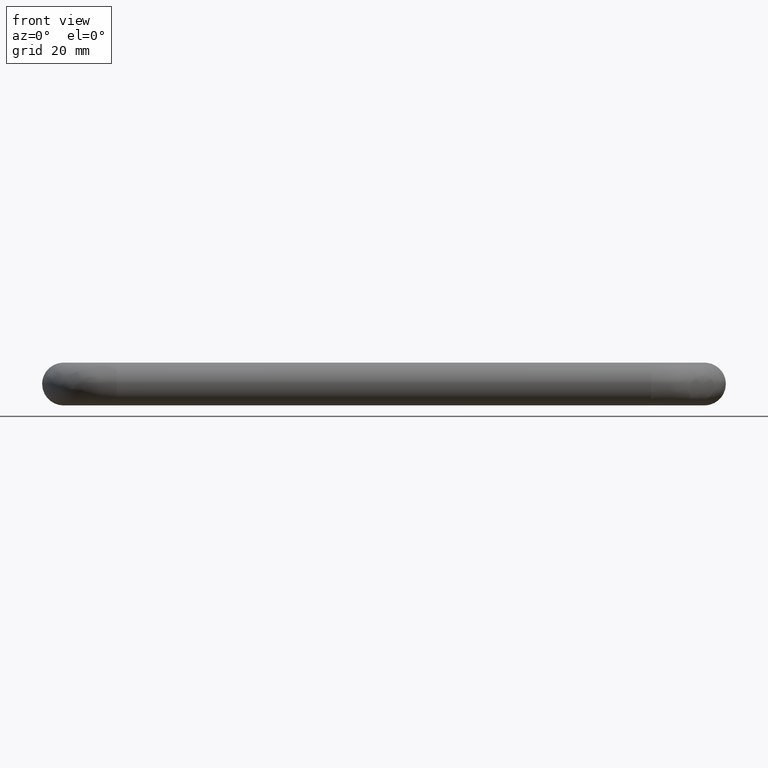
[diagram: clean part render]
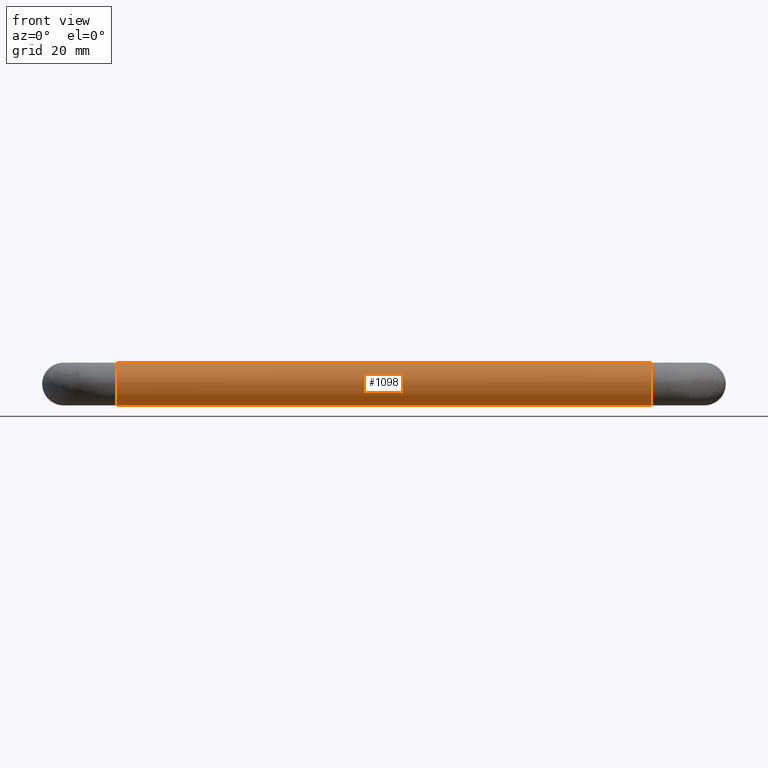
[diagram: same view with one face highlighted and labeled with its STEP entity id]
A machine part, front view. The second image highlights one B-rep face of the part: STEP entity #1098.
In plain terms, the highlighted face is a freeform B-spline surface patch.
Its self-contained STEP definition (entity closure, byte-faithful):
#928=CARTESIAN_POINT('',(9.374999998963990,-30.521972536820851,2.224245948408881));
#929=CARTESIAN_POINT('',(9.374999998963990,-30.856101220587441,2.896940181352409));
#930=CARTESIAN_POINT('',(9.374999998963988,-31.373128144938558,3.441772878468769));
#931=CARTESIAN_POINT('',(9.374999998963988,-34.814901023407330,7.068644733530205));
#932=CARTESIAN_POINT('',(9.374999998963988,-38.441772878468768,3.626871855061437));
#933=CARTESIAN_POINT('',(9.374999998963988,-42.068644733530206,0.185098976592668));
#934=CARTESIAN_POINT('',(9.374999998963988,-38.626871855061438,-3.441772878468769));
#935=CARTESIAN_POINT('',(9.374999998963988,-35.185098976592663,-7.068644733530205));
#936=CARTESIAN_POINT('',(9.374999998963988,-31.558227121531232,-3.626871855061437));
#937=CARTESIAN_POINT('',(140.703125001164550,-30.521972536820840,2.224245948408881));
#938=CARTESIAN_POINT('',(140.703125001164520,-30.856101220587430,2.896940181352409));
#939=CARTESIAN_POINT('',(140.703125001164490,-31.373128144938558,3.441772878468769));
#940=CARTESIAN_POINT('',(140.703125001164520,-34.814901023407316,7.068644733530205));
#941=CARTESIAN_POINT('',(140.703125001164490,-38.441772878468761,3.626871855061437));
#942=CARTESIAN_POINT('',(140.703125001164520,-42.068644733530206,0.185098976592668));
#943=CARTESIAN_POINT('',(140.703125001164490,-38.626871855061431,-3.441772878468769));
#944=CARTESIAN_POINT('',(140.703125001164520,-35.185098976592663,-7.068644733530205));
#945=CARTESIAN_POINT('',(140.703125001164490,-31.558227121531232,-3.626871855061437));
#953=(BOUNDED_SURFACE()B_SPLINE_SURFACE(2,1,((#928,#937),(#929,#938),(#930,#939),(#931,#940),(#932,#941),(#933,#942),(#934,#943),(#935,#944),(#936,#945)),.UNSPECIFIED.,.F.,.F.,.U.)B_SPLINE_SURFACE_WITH_KNOTS((3,2,2,2,3),(2,2),(0.0,1.656854249492380,9.941125496954278,18.225396744416180,26.509667991878079),(0.0,131.328125002200610),.UNSPECIFIED.)GEOMETRIC_REPRESENTATION_ITEM()RATIONAL_B_SPLINE_SURFACE(((0.906274169979695,0.906274169979695),(0.941421356237309,0.941421356237309),(1.0,1.0),(0.707106781186548,0.707106781186548),(1.0,1.0),(0.707106781186548,0.707106781186548),(1.0,1.0),(0.707106781186548,0.707106781186548),(1.0,1.0)))REPRESENTATION_ITEM('')SURFACE());
#954=CARTESIAN_POINT('',(137.500000000000000,-30.521972536833768,2.224245948434888));
#955=VERTEX_POINT('',#954);
#956=CARTESIAN_POINT('',(137.500000000045110,-35.348666258604020,4.987828369151366));
#957=VERTEX_POINT('',#956);
#958=CARTESIAN_POINT('',(137.500000000000060,-30.521972536833761,2.224245948434887));
#959=CARTESIAN_POINT('',(137.499999999999940,-31.900695591553514,4.999999999999999));
#960=CARTESIAN_POINT('',(137.500000000000000,-35.0,5.0));
#961=CARTESIAN_POINT('',(137.500000000000030,-35.174545580102858,5.0));
#962=CARTESIAN_POINT('',(137.500000000045080,-35.348666258604020,4.987828369151366));
#970=(BOUNDED_CURVE()B_SPLINE_CURVE(2,(#958,#959,#960,#961,#962),.UNSPECIFIED.,.F.,.U.)B_SPLINE_CURVE_WITH_KNOTS((3,2,3),(0.575619190624198,0.750000000000000,0.762166313514975),.UNSPECIFIED.)CURVE()GEOMETRIC_REPRESENTATION_ITEM()RATIONAL_B_SPLINE_CURVE((0.876408099966891,0.795700173770505,1.0,0.985746277094021,0.972879876281080))REPRESENTATION_ITEM(''));
#971=EDGE_CURVE('',#955,#957,#970,.T.);
#972=ORIENTED_EDGE('',*,*,#971,.F.);
#973=CARTESIAN_POINT('',(12.499999999896010,-30.521972536891429,2.224245948405257));
#974=VERTEX_POINT('',#973);
#975=CARTESIAN_POINT('',(12.499999999896010,-30.521972536891429,2.224245948405257));
#976=CARTESIAN_POINT('',(137.500000000000000,-30.521972536833768,2.224245948434888));
#977=QUASI_UNIFORM_CURVE('',1,(#975,#976),.UNSPECIFIED.,.F.,.U.);
#978=EDGE_CURVE('',#974,#955,#977,.T.);
#979=ORIENTED_EDGE('',*,*,#978,.F.);
#980=CARTESIAN_POINT('',(12.499999999016350,-34.937169799205734,4.999605221001767));
#981=VERTEX_POINT('',#980);
#982=CARTESIAN_POINT('',(12.499999999896009,-30.521972536891429,2.224245948405256));
#983=CARTESIAN_POINT('',(12.499999999625159,-31.881425326293023,4.961203580365527));
#984=CARTESIAN_POINT('',(12.499999999016353,-34.937169799205734,4.999605221001767));
#992=(BOUNDED_CURVE()B_SPLINE_CURVE(2,(#982,#983,#984),.UNSPECIFIED.,.F.,.U.)B_SPLINE_CURVE_WITH_KNOTS((3,3),(0.575619190622084,0.747784295824807),.UNSPECIFIED.)CURVE()GEOMETRIC_REPRESENTATION_ITEM()RATIONAL_B_SPLINE_CURVE((0.876408099968847,0.796725658680573,0.994854295420937))REPRESENTATION_ITEM(''));
#993=EDGE_CURVE('',#974,#981,#992,.T.);
#994=ORIENTED_EDGE('',*,*,#993,.T.);
#995=CARTESIAN_POINT('',(12.500000000000000,-40.0,0.0));
#996=VERTEX_POINT('',#995);
#997=CARTESIAN_POINT('',(12.499999999016358,-34.937169799205726,4.999605221001768));
#998=CARTESIAN_POINT('',(12.500000000000002,-34.968583658662745,5.0));
#999=CARTESIAN_POINT('',(12.500000000000000,-35.0,5.0));
#1000=CARTESIAN_POINT('',(12.500000000000000,-39.999999999999993,5.000000000000001));
#1001=CARTESIAN_POINT('',(12.500000000000000,-40.0,0.0));
#1009=(BOUNDED_CURVE()B_SPLINE_CURVE(2,(#997,#998,#999,#1000,#1001),.UNSPECIFIED.,.F.,.U.)B_SPLINE_CURVE_WITH_KNOTS((3,2,3),(0.747784295824808,0.750000000000000,1.0),.UNSPECIFIED.)CURVE()GEOMETRIC_REPRESENTATION_ITEM()RATIONAL_B_SPLINE_CURVE((0.994854295420939,0.997404141088758,1.0,0.707106781186548,1.0))REPRESENTATION_ITEM(''));
#1010=EDGE_CURVE('',#981,#996,#1009,.T.);
#1011=ORIENTED_EDGE('',*,*,#1010,.T.);
#1012=CARTESIAN_POINT('',(12.499999999540499,-35.348666260475738,-4.987828369020527));
#1013=VERTEX_POINT('',#1012);
#1014=CARTESIAN_POINT('',(12.500000000000000,-40.0,0.0));
#1015=CARTESIAN_POINT('',(12.500000000000000,-40.000000000000007,-4.662684231463254));
#1016=CARTESIAN_POINT('',(12.499999999540504,-35.348666260475738,-4.987828369020527));
#1024=(BOUNDED_CURVE()B_SPLINE_CURVE(2,(#1014,#1015,#1016),.UNSPECIFIED.,.F.,.U.)B_SPLINE_CURVE_WITH_KNOTS((3,3),(0.0,0.237833686355948),.UNSPECIFIED.)CURVE()GEOMETRIC_REPRESENTATION_ITEM()RATIONAL_B_SPLINE_CURVE((1.0,0.721360504243749,0.972879876008072))REPRESENTATION_ITEM(''));
#1025=EDGE_CURVE('',#996,#1013,#1024,.T.);
#1026=ORIENTED_EDGE('',*,*,#1025,.T.);
#1027=CARTESIAN_POINT('',(12.500000000000000,-31.558227545752050,-3.626872257631862));
#1028=VERTEX_POINT('',#1027);
#1029=CARTESIAN_POINT('',(12.499999999540503,-35.348666260475738,-4.987828369020527));
#1030=CARTESIAN_POINT('',(12.500000000000005,-35.174545581981441,-4.999999999999999));
#1031=CARTESIAN_POINT('',(12.500000000000000,-35.0,-5.0));
#1032=CARTESIAN_POINT('',(12.499999999999993,-33.005202948048129,-5.0));
#1033=CARTESIAN_POINT('',(12.500000000000011,-31.558227545752043,-3.626872257631861));
#1041=(BOUNDED_CURVE()B_SPLINE_CURVE(2,(#1029,#1030,#1031,#1032,#1033),.UNSPECIFIED.,.F.,.U.)B_SPLINE_CURVE_WITH_KNOTS((3,2,3),(0.237833686355948,0.250000000000000,0.371049491355408),.UNSPECIFIED.)CURVE()GEOMETRIC_REPRESENTATION_ITEM()RATIONAL_B_SPLINE_CURVE((0.972879876008072,0.985746276942799,1.0,0.858181699364734,0.853699663983766))REPRESENTATION_ITEM(''));
#1042=EDGE_CURVE('',#1013,#1028,#1041,.T.);
#1043=ORIENTED_EDGE('',*,*,#1042,.T.);
#1044=CARTESIAN_POINT('',(137.500000000350610,-31.558228746679660,-3.626873397050097));
#1045=VERTEX_POINT('',#1044);
#1046=CARTESIAN_POINT('',(12.500000000000000,-31.558227545752050,-3.626872257631862));
#1047=CARTESIAN_POINT('',(137.500000000350610,-31.558228746679660,-3.626873397050097));
#1048=QUASI_UNIFORM_CURVE('',1,(#1046,#1047),.UNSPECIFIED.,.F.,.U.);
#1049=EDGE_CURVE('',#1028,#1045,#1048,.T.);
#1050=ORIENTED_EDGE('',*,*,#1049,.T.);
#1051=CARTESIAN_POINT('',(137.500000001110890,-34.937169799106677,-4.999605221000522));
#1052=VERTEX_POINT('',#1051);
#1053=CARTESIAN_POINT('',(137.500000001110830,-34.937169799106684,-4.999605221000523));
#1054=CARTESIAN_POINT('',(137.500000000670240,-32.978853772972400,-4.974994999435353));
#1055=CARTESIAN_POINT('',(137.500000000350640,-31.558228746679656,-3.626873397050098));
#1063=(BOUNDED_CURVE()B_SPLINE_CURVE(2,(#1053,#1054,#1055),.UNSPECIFIED.,.F.,.U.)B_SPLINE_CURVE_WITH_KNOTS((3,3),(0.252215704182161,0.371049459051508),.UNSPECIFIED.)CURVE()GEOMETRIC_REPRESENTATION_ITEM()RATIONAL_B_SPLINE_CURVE((0.994854295404900,0.858099696835445,0.853699666375974))REPRESENTATION_ITEM(''));
#1064=EDGE_CURVE('',#1052,#1045,#1063,.T.);
#1065=ORIENTED_EDGE('',*,*,#1064,.F.);
#1066=CARTESIAN_POINT('',(137.500000000000000,-40.0,0.0));
#1067=VERTEX_POINT('',#1066);
#1068=CARTESIAN_POINT('',(137.500000000000000,-40.0,0.0));
#1069=CARTESIAN_POINT('',(137.500000000000000,-39.999999999999993,-5.000000000000001));
#1070=CARTESIAN_POINT('',(137.500000000000000,-35.0,-5.0));
#1071=CARTESIAN_POINT('',(137.499999999999940,-34.968583658563681,-5.0));
#1072=CARTESIAN_POINT('',(137.500000001110830,-34.937169799106684,-4.999605221000523));
#1080=(BOUNDED_CURVE()B_SPLINE_CURVE(2,(#1068,#1069,#1070,#1071,#1072),.UNSPECIFIED.,.F.,.U.)B_SPLINE_CURVE_WITH_KNOTS((3,2,3),(0.0,0.250000000000000,0.252215704182161),.UNSPECIFIED.)CURVE()GEOMETRIC_REPRESENTATION_ITEM()RATIONAL_B_SPLINE_CURVE((1.0,0.707106781186548,1.0,0.997404141080594,0.994854295404900))REPRESENTATION_ITEM(''));
#1081=EDGE_CURVE('',#1067,#1052,#1080,.T.);
#1082=ORIENTED_EDGE('',*,*,#1081,.F.);
#1083=CARTESIAN_POINT('',(137.500000000045130,-35.348666258604020,4.987828369151366));
#1084=CARTESIAN_POINT('',(137.500000000000000,-40.0,4.662684234971207));
#1085=CARTESIAN_POINT('',(137.500000000000000,-40.0,0.0));
#1093=(BOUNDED_CURVE()B_SPLINE_CURVE(2,(#1083,#1084,#1085),.UNSPECIFIED.,.F.,.U.)B_SPLINE_CURVE_WITH_KNOTS((3,3),(0.762166313514976,1.0),.UNSPECIFIED.)CURVE()GEOMETRIC_REPRESENTATION_ITEM()RATIONAL_B_SPLINE_CURVE((0.972879876281078,0.721360504092528,1.0))REPRESENTATION_ITEM(''));
#1094=EDGE_CURVE('',#957,#1067,#1093,.T.);
#1095=ORIENTED_EDGE('',*,*,#1094,.F.);
#1096=EDGE_LOOP('',(#972,#979,#994,#1011,#1026,#1043,#1050,#1065,#1082,#1095));
#1097=FACE_OUTER_BOUND('',#1096,.T.);
#1098=ADVANCED_FACE('',(#1097),#953,.T.);